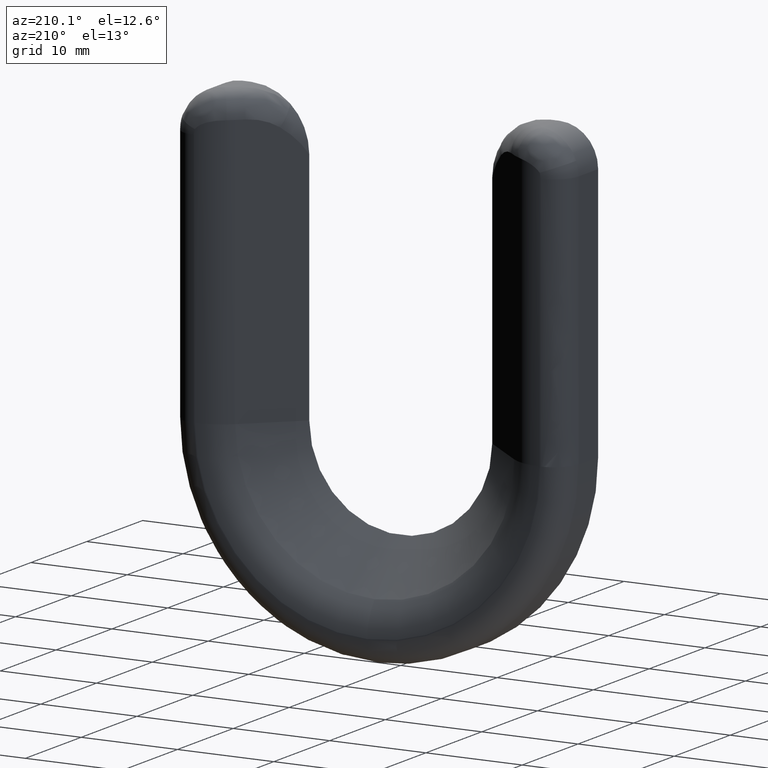
[diagram: clean part render]
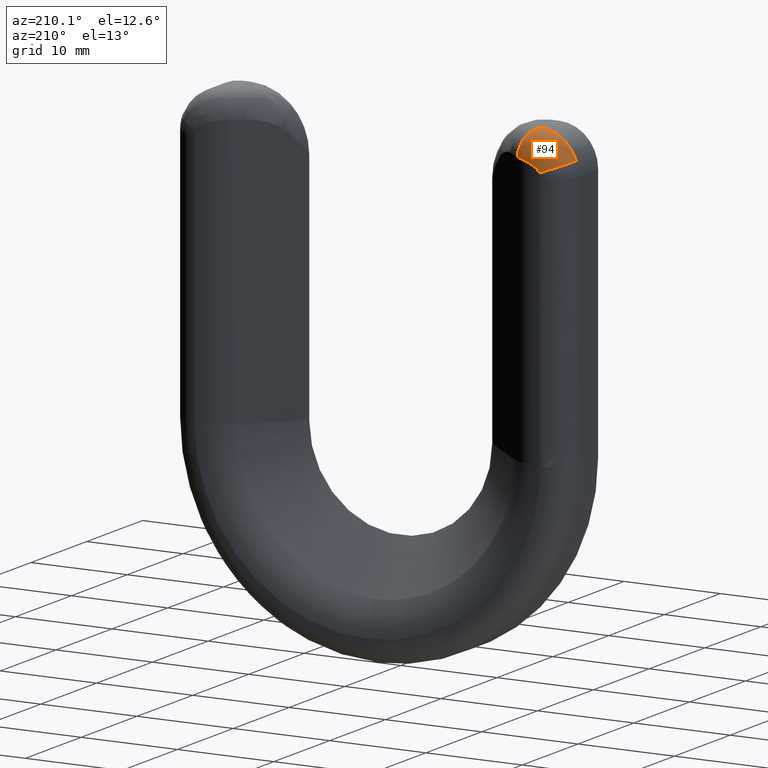
[diagram: same view with one face highlighted and labeled with its STEP entity id]
A machine part, auxiliary view. The second image highlights one B-rep face of the part: STEP entity #94.
In plain terms, the highlighted face is a freeform B-spline surface patch.
Its self-contained STEP definition (entity closure, byte-faithful):
#3 = DIRECTION ( 'NONE',  ( -0.5615058552891044600, -0.8274727635856369300, 0.0000000000000000000 ) ) ;
#20 = ORIENTED_EDGE ( 'NONE', *, *, #738, .F. ) ;
#42 = VERTEX_POINT ( 'NONE', #367 ) ;
#46 = CARTESIAN_POINT ( 'NONE',  ( -16.29014158483354900, 5.739599983814202700, 37.38347524986893700 ) ) ;
#49 = EDGE_CURVE ( 'NONE', #678, #989, #469, .T. ) ;
#74 = CARTESIAN_POINT ( 'NONE',  ( -18.72569571184658300, 6.240443709412408800, 39.35795912625663800 ) ) ;
#80 = CARTESIAN_POINT ( 'NONE',  ( -16.84669536680607000, 5.966612097818623000, 40.11553606726469200 ) ) ;
#94 = ADVANCED_FACE ( 'NONE', ( #447 ), #1135, .T. ) ;
#146 = CARTESIAN_POINT ( 'NONE',  ( -17.82151384145133800, 6.000000000000001800, 36.63783390696534100 ) ) ;
#150 = CARTESIAN_POINT ( 'NONE',  ( -15.55367777930329400, 5.421410349297491200, 37.48771465236979600 ) ) ;
#170 = CARTESIAN_POINT ( 'NONE',  ( -17.79136469633187900, 6.000000000000002700, 36.67786439772351800 ) ) ;
#172 = CARTESIAN_POINT ( 'NONE',  ( -16.49999999999998900, 3.068681908964094000, 39.99999999999999300 ) ) ;
#176 = CARTESIAN_POINT ( 'NONE',  ( -18.86544800420720900, 3.446938652640353600, 39.23233584862453000 ) ) ;
#183 = CARTESIAN_POINT ( 'NONE',  ( -17.21878210951395300, 3.233240580694742000, 39.95444593894961100 ) ) ;
#216 = CARTESIAN_POINT ( 'NONE',  ( -17.90376463822276100, 3.500000000000001800, 36.52862542549075900 ) ) ;
#232 = CARTESIAN_POINT ( 'NONE',  ( -18.06440124175900800, 3.367900978395285300, 39.70351727990505700 ) ) ;
#246 = CARTESIAN_POINT ( 'NONE',  ( -15.09623536177722900, 5.137363817928186200, 37.49999999999999300 ) ) ;
#268 = CARTESIAN_POINT ( 'NONE',  ( -19.85158289077219600, 6.122460114824725100, 38.24139570980412400 ) ) ;
#272 = CARTESIAN_POINT ( 'NONE',  ( -16.87032136120615900, 5.893877298319549300, 37.21212593911627700 ) ) ;
#273 = EDGE_CURVE ( 'NONE', #42, #1230, #644, .T. ) ;
#277 = CARTESIAN_POINT ( 'NONE',  ( -15.63532195020001200, 5.466481163911084600, 37.48291724004791800 ) ) ;
#312 = DIRECTION ( 'NONE',  ( -0.9358430921485138000, 0.0000000000000000000, 0.3524169503271778500 ) ) ;
#325 = CARTESIAN_POINT ( 'NONE',  ( -19.10046779091603900, 3.466389364556989000, 39.06664757796588800 ) ) ;
#359 = CARTESIAN_POINT ( 'NONE',  ( -17.33511299445300600, 5.968568574833587300, 37.00159742294188400 ) ) ;
#366 = CARTESIAN_POINT ( 'NONE',  ( -17.96313481915691700, 6.197756259757635900, 39.78838696221702500 ) ) ;
#367 = CARTESIAN_POINT ( 'NONE',  ( -20.24337236859404500, 3.500000000000000000, 37.40966780130870000 ) ) ;
#373 = CARTESIAN_POINT ( 'NONE',  ( -15.51995589620014800, 5.424891880783935200, 40.12623783725177200 ) ) ;
#423 = CARTESIAN_POINT ( 'NONE',  ( -19.90062501567306400, 3.498501515345013900, 38.14549419339217500 ) ) ;
#429 = AXIS2_PLACEMENT_3D ( 'NONE', #1175, #590, #3 ) ;
#430 = EDGE_LOOP ( 'NONE', ( #1022, #20, #1056, #534 ) ) ;
#436 = CARTESIAN_POINT ( 'NONE',  ( -17.90376463822277100, 6.000000000000000000, 36.52862542549073100 ) ) ;
#447 = FACE_OUTER_BOUND ( 'NONE', #430, .T. ) ;
#456 = CARTESIAN_POINT ( 'NONE',  ( -19.88417073599186600, 3.498378306936742900, 38.17433777738181500 ) ) ;
#463 = CARTESIAN_POINT ( 'NONE',  ( -19.03164551138391000, 3.459059415765389600, 39.10392346487245200 ) ) ;
#469 = CIRCLE ( 'NONE', #429, 2.500000000000000000 ) ;
#471 = CARTESIAN_POINT ( 'NONE',  ( -17.68976522576934600, 6.159954326315063800, 39.89828295108964100 ) ) ;
#477 = CARTESIAN_POINT ( 'NONE',  ( -16.49999999999998900, 3.068681908964093500, 39.99999999999999300 ) ) ;
#524 = CARTESIAN_POINT ( 'NONE',  ( -20.24337236859404500, 3.500000000000000000, 37.40966780130870000 ) ) ;
#534 = ORIENTED_EDGE ( 'NONE', *, *, #1236, .F. ) ;
#535 = CARTESIAN_POINT ( 'NONE',  ( -17.39688766622857900, 5.975667351469574800, 36.96652345028692800 ) ) ;
#561 = CARTESIAN_POINT ( 'NONE',  ( -20.24337236859404900, 5.999999999999992900, 37.40966780130870000 ) ) ;
#565 = CARTESIAN_POINT ( 'NONE',  ( -20.09359967382241100, 3.500000013197423600, 37.80738914151205400 ) ) ;
#569 = CARTESIAN_POINT ( 'NONE',  ( -19.15752268453577000, 6.221489860859205300, 39.01285882940484100 ) ) ;
#571 = CARTESIAN_POINT ( 'NONE',  ( -17.97253675304855800, 3.351605625940584900, 39.72450647961182600 ) ) ;
#587 = CARTESIAN_POINT ( 'NONE',  ( -15.09623536177722900, 5.137363817928186200, 37.49999999999999300 ) ) ;
#590 = DIRECTION ( 'NONE',  ( -0.8274727635856368200, 0.5615058552891044600, 0.0000000000000000000 ) ) ;
#609 = CARTESIAN_POINT ( 'NONE',  ( -16.89687439914827700, 3.169673434943658400, 39.99999999999999300 ) ) ;
#629 = CARTESIAN_POINT ( 'NONE',  ( -16.79038634913754500, 5.881390800826581600, 37.24612194121185400 ) ) ;
#630 = B_SPLINE_CURVE_WITH_KNOTS ( 'NONE', 3,
 ( #709, #609, #800, #232, #902, #325, #1008, #423, #1104, #524 ),
 .UNSPECIFIED., .F., .F.,
 ( 4, 2, 2, 2, 4 ),
 ( 0.0000000000000000000, 0.001215186553605707500, 0.002430373107211415100, 0.003645559660817122800, 0.004860746214422830200 ),
 .UNSPECIFIED. ) ;
#644 = CIRCLE ( 'NONE', #647, 2.500000000000000400 ) ;
#647 = AXIS2_PLACEMENT_3D ( 'NONE', #216, #885, #312 ) ;
#648 = CARTESIAN_POINT ( 'NONE',  ( -20.24337236859404500, 3.500000000000001800, 37.40966780130870000 ) ) ;
#651 = CARTESIAN_POINT ( 'NONE',  ( -16.99496949446648100, 5.918118842293951700, 37.16397129981257300 ) ) ;
#659 = CARTESIAN_POINT ( 'NONE',  ( -17.13070533437761600, 6.044207033024299800, 40.06210685842894000 ) ) ;
#678 = VERTEX_POINT ( 'NONE', #172 ) ;
#709 = CARTESIAN_POINT ( 'NONE',  ( -16.49999999999998900, 3.068681908964094000, 39.99999999999999300 ) ) ;
#726 = CARTESIAN_POINT ( 'NONE',  ( -16.03959982023306500, 5.647221455096620900, 37.42937893955533500 ) ) ;
#738 = EDGE_CURVE ( 'NONE', #1230, #989, #841, .T. ) ;
#753 = CARTESIAN_POINT ( 'NONE',  ( -18.48436822316063700, 6.238198791457275400, 39.51651269514449200 ) ) ;
#756 = CARTESIAN_POINT ( 'NONE',  ( -17.78540824079194500, 3.325157440858110800, 39.79292739922110700 ) ) ;
#800 = CARTESIAN_POINT ( 'NONE',  ( -17.29182695291889300, 3.247122382974473100, 39.94162422922377000 ) ) ;
#821 = CARTESIAN_POINT ( 'NONE',  ( -15.32002781694494700, 5.289224736469694900, 37.50000000000000000 ) ) ;
#838 = CARTESIAN_POINT ( 'NONE',  ( -15.09623536177722900, 5.137363817928185300, 37.49999999999999300 ) ) ;
#841 = B_SPLINE_CURVE_WITH_KNOTS ( 'NONE', 3,
 ( #436, #146, #1017, #1122, #535, #1215, #629, #46, #726, #150, #821, #246 ),
 .UNSPECIFIED., .F., .F.,
 ( 4, 2, 2, 2, 2, 4 ),
 ( 1.964531255190340400E-017, 0.0004016327503685602800, 0.0008032655007371009300, 0.001606531001474173000, 0.002409796502211244900, 0.003213062002948311800 ),
 .UNSPECIFIED. ) ;
#842 = CARTESIAN_POINT ( 'NONE',  ( -20.08533335388095200, 6.052994317031783900, 37.82934046934173000 ) ) ;
#846 = CARTESIAN_POINT ( 'NONE',  ( -18.51712157211853000, 3.415668783730891400, 39.46042769931769800 ) ) ;
#848 = CARTESIAN_POINT ( 'NONE',  ( -16.06029153922753800, 5.650314880455418600, 37.42234776823700300 ) ) ;
#885 = DIRECTION ( 'NONE',  ( -0.3524169503271778500, -1.467230296955298600E-015, -0.9358430921485136900 ) ) ;
#902 = CARTESIAN_POINT ( 'NONE',  ( -18.42712665924722500, 3.408916501183022300, 39.52887275744740200 ) ) ;
#941 = CARTESIAN_POINT ( 'NONE',  ( -19.34924587641938800, 6.200707080363785400, 38.82657704336728700 ) ) ;
#949 = CARTESIAN_POINT ( 'NONE',  ( -16.60907654459266100, 5.831337574422916800, 37.29766039136207200 ) ) ;
#956 = CARTESIAN_POINT ( 'NONE',  ( -16.01617966327537300, 5.678132806657983700, 40.18920946817441100 ) ) ;
#989 = VERTEX_POINT ( 'NONE', #587 ) ;
#1008 = CARTESIAN_POINT ( 'NONE',  ( -19.39584570207941600, 3.481535554402674900, 38.78952926151512100 ) ) ;
#1017 = CARTESIAN_POINT ( 'NONE',  ( -17.72428748635499200, 5.997902708421755800, 36.72999456503870900 ) ) ;
#1022 = ORIENTED_EDGE ( 'NONE', *, *, #49, .T. ) ;
#1036 = CARTESIAN_POINT ( 'NONE',  ( -17.63436340558384100, 5.996756595532362500, 36.81537666253478800 ) ) ;
#1046 = CARTESIAN_POINT ( 'NONE',  ( -19.48517017144282100, 3.484284282831514400, 38.67092645586719600 ) ) ;
#1049 = CARTESIAN_POINT ( 'NONE',  ( -16.20063792637502000, 5.703211259355732000, 37.39668993235837700 ) ) ;
#1055 = CARTESIAN_POINT ( 'NONE',  ( -16.85202704502031800, 3.158261245865379600, 39.99999999999999300 ) ) ;
#1056 = ORIENTED_EDGE ( 'NONE', *, *, #273, .F. ) ;
#1104 = CARTESIAN_POINT ( 'NONE',  ( -20.09905866763227400, 3.500000000000002200, 37.79289278530018900 ) ) ;
#1122 = CARTESIAN_POINT ( 'NONE',  ( -17.51256206526755900, 5.985800244474836200, 36.89437009837111200 ) ) ;
#1135 =( BOUNDED_SURFACE ( )  B_SPLINE_SURFACE ( 3, 2, ( 
 ( #838, #1233, #477 ),
 ( #1157, #373, #1055 ),
 ( #277, #956, #183 ),
 ( #848, #80, #756 ),
 ( #1049, #659, #571 ),
 ( #1251, #471, #1148 ),
 ( #949, #366, #846 ),
 ( #272, #753, #176 ),
 ( #651, #74, #463 ),
 ( #1145, #569, #1141 ),
 ( #359, #941, #1046 ),
 ( #1036, #268, #456 ),
 ( #170, #842, #565 ),
 ( #1238, #561, #648 ) ),
 .UNSPECIFIED., .F., .F., .F. ) 
 B_SPLINE_SURFACE_WITH_KNOTS ( ( 4, 2, 2, 2, 2, 2, 4 ),
 ( 3, 3 ),
 ( 1.084202172485504400E-019, 0.0004726360881165286900, 0.0007089541321747929500, 0.0009452721762330572700, 0.001181590220291321600, 0.001417908264349585900, 0.001890544352466114500 ),
 ( 0.0000000000000000000, 1.000000000000000000 ),
 .UNSPECIFIED. ) 
 GEOMETRIC_REPRESENTATION_ITEM ( )  RATIONAL_B_SPLINE_SURFACE ( (
 ( 1.000000000000000000, 0.7071067811865475700, 1.000000000000000000),
 ( 1.000000000000000000, 0.6896215001308695400, 1.000000000000000000),
 ( 1.000000000000000000, 0.6757434437360443400, 1.000000000000000000),
 ( 1.000000000000000000, 0.6634060902024191400, 1.000000000000000000),
 ( 1.000000000000000000, 0.6608153487847526800, 1.000000000000000000),
 ( 1.000000000000000000, 0.6585672462182375900, 1.000000000000000000),
 ( 1.000000000000000000, 0.6588969389619863100, 1.000000000000000000),
 ( 1.000000000000000000, 0.6620572832322797500, 1.000000000000000000),
 ( 1.000000000000000000, 0.6648648960228181700, 1.000000000000000000),
 ( 1.000000000000000000, 0.6719333202767076000, 1.000000000000000000),
 ( 1.000000000000000000, 0.6762034708758482000, 1.000000000000000000),
 ( 1.000000000000000000, 0.6899015987318665200, 1.000000000000000000),
 ( 1.000000000000000000, 0.6997158616882134300, 1.000000000000000000),
 ( 1.000000000000000000, 0.7071067811865489100, 1.000000000000000000) ) ) 
 REPRESENTATION_ITEM ( '' )  SURFACE ( )  );
#1141 = CARTESIAN_POINT ( 'NONE',  ( -19.34096240863853200, 3.477687092666217800, 38.82356201699180800 ) ) ;
#1145 = CARTESIAN_POINT ( 'NONE',  ( -17.22695716910482100, 5.955374174569257700, 37.05883575588651300 ) ) ;
#1148 = CARTESIAN_POINT ( 'NONE',  ( -18.33810044273888500, 3.396817027004146900, 39.55832822659073100 ) ) ;
#1157 = CARTESIAN_POINT ( 'NONE',  ( -15.36022798690927800, 5.316503738041634900, 37.50000001273956200 ) ) ;
#1175 = CARTESIAN_POINT ( 'NONE',  ( -16.49999999999998900, 3.068681908964094000, 37.49999999999999300 ) ) ;
#1200 = CARTESIAN_POINT ( 'NONE',  ( -17.90376463822277100, 6.000000000000000000, 36.52862542549073100 ) ) ;
#1215 = CARTESIAN_POINT ( 'NONE',  ( -17.04232757299633500, 5.930992355654889400, 37.15449236556749900 ) ) ;
#1230 = VERTEX_POINT ( 'NONE', #1200 ) ;
#1233 = CARTESIAN_POINT ( 'NONE',  ( -15.09623536177723000, 5.137363817928185300, 39.99999999999999300 ) ) ;
#1236 = EDGE_CURVE ( 'NONE', #678, #42, #630, .T. ) ;
#1238 = CARTESIAN_POINT ( 'NONE',  ( -17.90376463822277100, 6.000000000000001800, 36.52862542549075900 ) ) ;
#1251 = CARTESIAN_POINT ( 'NONE',  ( -16.47481069402003900, 5.793634046533726200, 37.33437308246757200 ) ) ;